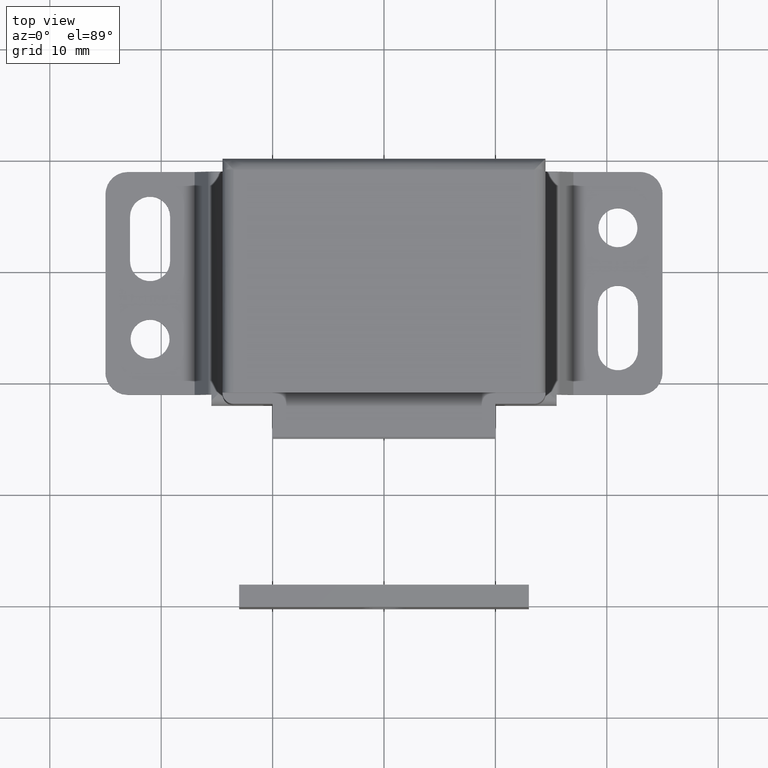
[diagram: clean part render]
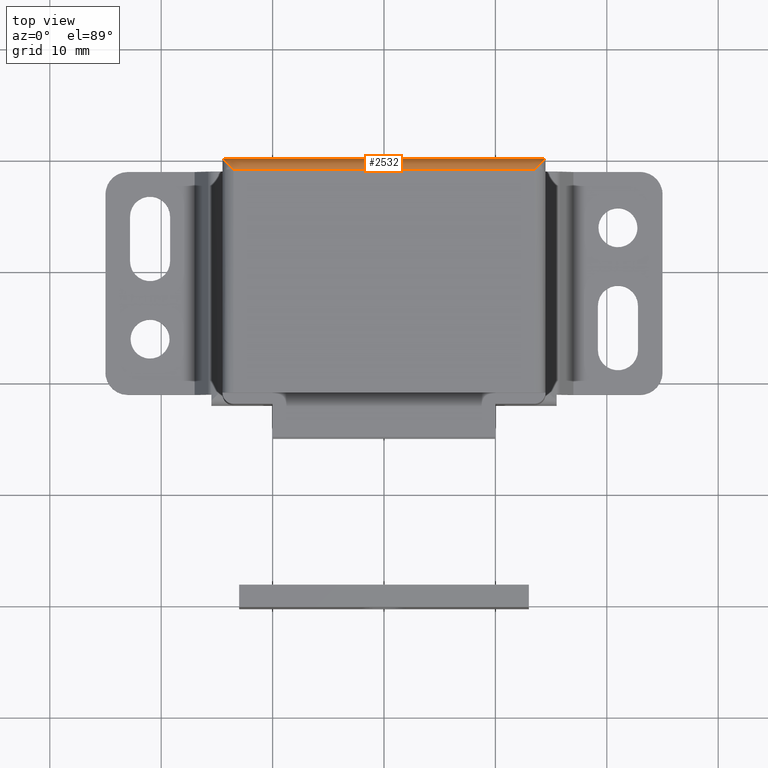
[diagram: same view with one face highlighted and labeled with its STEP entity id]
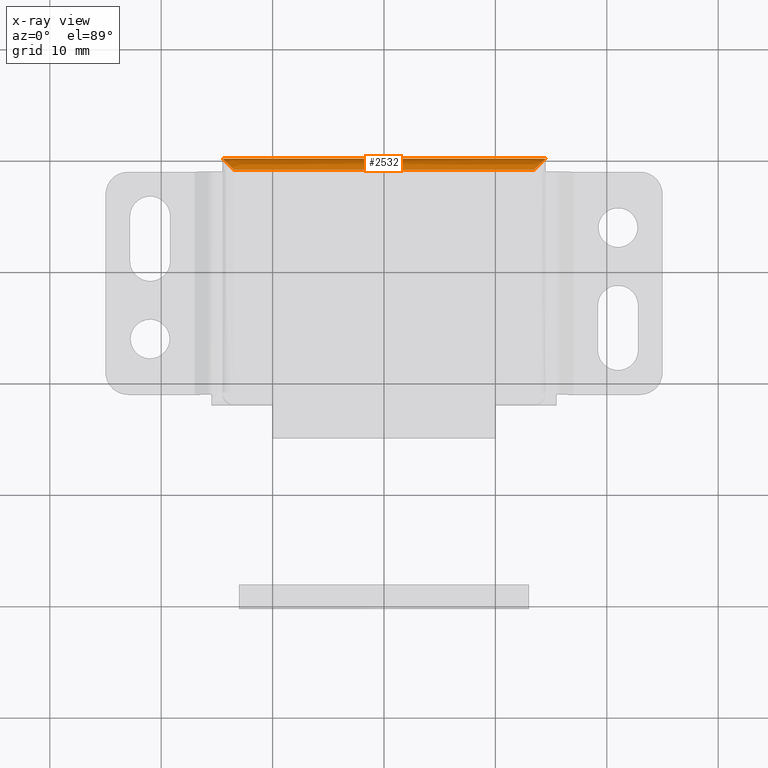
[diagram: x-ray of the same camera — body ghosted, the highlighted face saturated]
A machine part, top view. The second image highlights one B-rep face of the part: STEP entity #2532.
The next image is the same camera in x-ray: the body ghosted, the highlighted face saturated — about 0% of this face is hidden behind the body in this view.
In plain terms, the highlighted face is a freeform B-spline surface patch.
Its self-contained STEP definition (entity closure, byte-faithful):
#2030=CARTESIAN_POINT('',(13.500000000000000,-1.0,13.0));
#2031=VERTEX_POINT('',#2030);
#2032=CARTESIAN_POINT('',(-13.500000000000000,-1.0,13.0));
#2033=VERTEX_POINT('',#2032);
#2034=CARTESIAN_POINT('',(13.500000000000000,-1.0,13.0));
#2035=CARTESIAN_POINT('',(-13.500000000000000,-1.0,13.0));
#2036=QUASI_UNIFORM_CURVE('',1,(#2034,#2035),.UNSPECIFIED.,.F.,.U.);
#2037=EDGE_CURVE('',#2031,#2033,#2036,.T.);
#2075=CARTESIAN_POINT('',(-14.500000000000000,0.0,12.0));
#2076=VERTEX_POINT('',#2075);
#2446=CARTESIAN_POINT('',(14.500000000000000,0.0,12.0));
#2447=VERTEX_POINT('',#2446);
#2448=CARTESIAN_POINT('',(13.500000000000000,-1.0,13.0));
#2449=CARTESIAN_POINT('',(14.499999999999996,-8.673617E-016,12.999999957853152));
#2450=CARTESIAN_POINT('',(14.500000000000000,-6.505213E-016,12.0));
#2458=(BOUNDED_CURVE()B_SPLINE_CURVE(2,(#2448,#2449,#2450),.UNSPECIFIED.,.F.,.U.)CURVE()GEOMETRIC_REPRESENTATION_ITEM()QUASI_UNIFORM_CURVE()RATIONAL_B_SPLINE_CURVE((1.0,0.707106796087708,1.0))REPRESENTATION_ITEM(''));
#2459=EDGE_CURVE('',#2031,#2447,#2458,.T.);
#2491=CARTESIAN_POINT('',(-14.500000000000000,-6.505213E-016,12.0));
#2492=CARTESIAN_POINT('',(-14.499999999999996,-6.505213E-016,13.000000000000002));
#2493=CARTESIAN_POINT('',(-13.500000000000000,-1.000000000000000,13.0));
#2501=(BOUNDED_CURVE()B_SPLINE_CURVE(2,(#2491,#2492,#2493),.UNSPECIFIED.,.F.,.U.)CURVE()GEOMETRIC_REPRESENTATION_ITEM()QUASI_UNIFORM_CURVE()RATIONAL_B_SPLINE_CURVE((1.0,0.707106781186548,1.0))REPRESENTATION_ITEM(''));
#2502=EDGE_CURVE('',#2076,#2033,#2501,.T.);
#2508=CARTESIAN_POINT('',(-15.225000000000000,-1.008726535498373,12.999961923064170));
#2509=CARTESIAN_POINT('',(15.243124999999999,-1.008726535498373,12.999961923064170));
#2510=CARTESIAN_POINT('',(-15.225000000000009,0.063601342011755,13.009319986679547));
#2511=CARTESIAN_POINT('',(15.243125000000004,0.063601342011755,13.009319986679547));
#2512=CARTESIAN_POINT('',(-15.225000000000000,-0.001865201578131,11.938951460465139));
#2513=CARTESIAN_POINT('',(15.243124999999999,-0.001865201578131,11.938951460465139));
#2521=(BOUNDED_SURFACE()B_SPLINE_SURFACE(1,2,((#2508,#2510,#2512),(#2509,#2511,#2513)),.UNSPECIFIED.,.F.,.F.,.U.)B_SPLINE_SURFACE_WITH_KNOTS((2,2),(3,3),(0.0,30.468125000000001),(0.0,1.0),.UNSPECIFIED.)GEOMETRIC_REPRESENTATION_ITEM()RATIONAL_B_SPLINE_SURFACE(((1.0,0.681998360062499,1.0),(1.0,0.681998360062499,1.0)))REPRESENTATION_ITEM('')SURFACE());
#2522=CARTESIAN_POINT('',(-14.500000000000000,0.0,12.0));
#2523=CARTESIAN_POINT('',(14.500000000000000,0.0,12.0));
#2524=QUASI_UNIFORM_CURVE('',1,(#2522,#2523),.UNSPECIFIED.,.F.,.U.);
#2525=EDGE_CURVE('',#2076,#2447,#2524,.T.);
#2526=ORIENTED_EDGE('',*,*,#2525,.F.);
#2527=ORIENTED_EDGE('',*,*,#2502,.T.);
#2528=ORIENTED_EDGE('',*,*,#2037,.F.);
#2529=ORIENTED_EDGE('',*,*,#2459,.T.);
#2530=EDGE_LOOP('',(#2526,#2527,#2528,#2529));
#2531=FACE_OUTER_BOUND('',#2530,.T.);
#2532=ADVANCED_FACE('',(#2531),#2521,.T.);